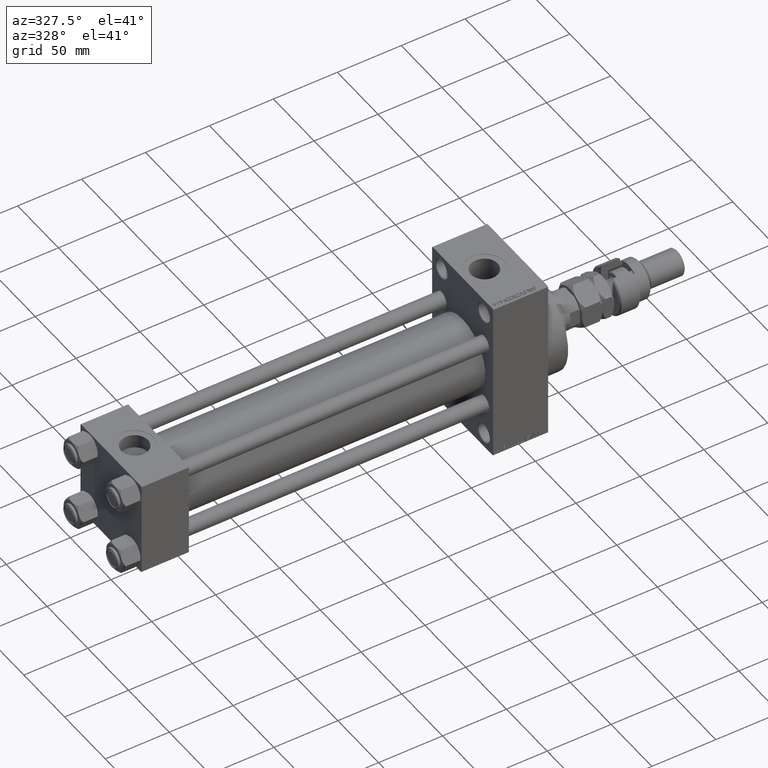
[diagram: clean part render]
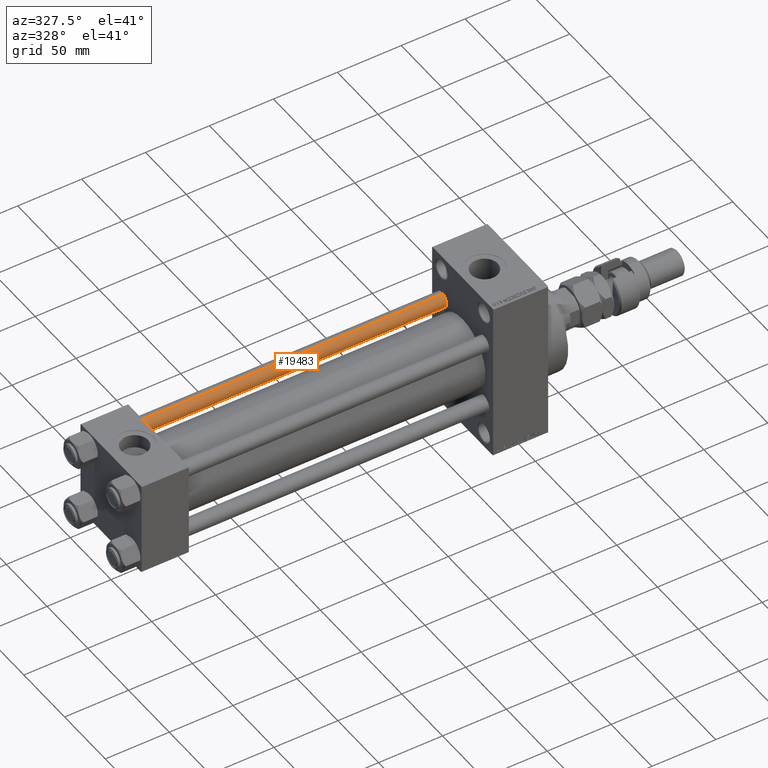
[diagram: same view with one face highlighted and labeled with its STEP entity id]
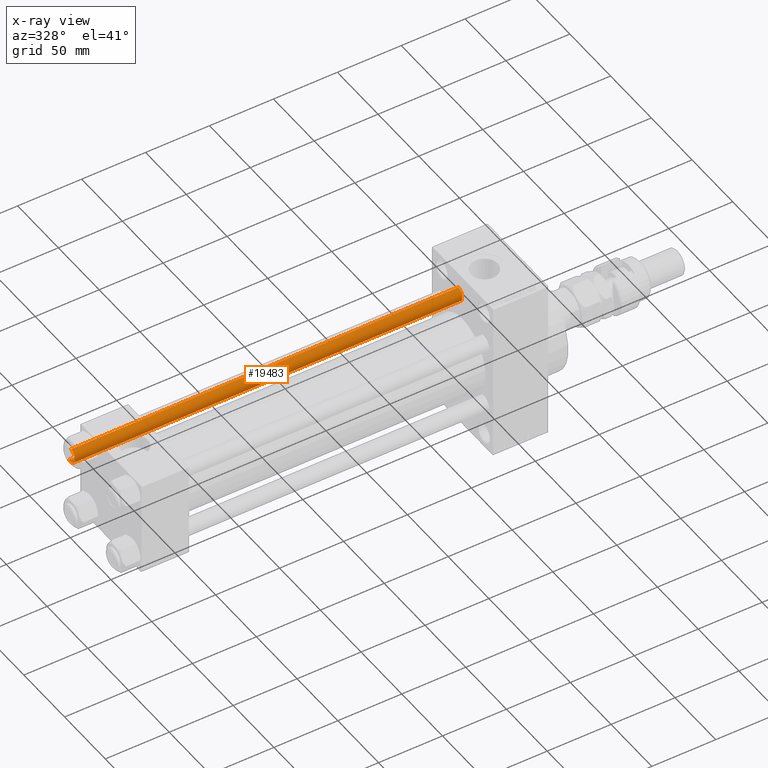
[diagram: x-ray of the same camera — body ghosted, the highlighted face saturated]
A machine part, auxiliary view. The second image highlights one B-rep face of the part: STEP entity #19483.
The next image is the same camera in x-ray: the body ghosted, the highlighted face saturated — about 0% of this face is hidden behind the body in this view.
In plain terms, the highlighted cylindrical surface (edge-blend (fillet) strip) has radius 6 mm, axis along (-1, -0, 0).
Its self-contained STEP definition (entity closure, byte-faithful):
#1121 = AXIS2_PLACEMENT_3D ( 'NONE', #28550, #9257, #36688 ) ;
#3309 = EDGE_CURVE ( 'NONE', #30546, #28479, #13300, .T. ) ;
#4923 = CYLINDRICAL_SURFACE ( 'NONE', #47720, 6.000000000000000888 ) ;
#5995 = ORIENTED_EDGE ( 'NONE', *, *, #3309, .T. ) ;
#6814 = CARTESIAN_POINT ( 'NONE',  ( -6.000000000000000888, 0.000000000000000000, 0.4999999999999449329 ) ) ;
#7578 = LINE ( 'NONE', #27371, #28662 ) ;
#7581 = EDGE_CURVE ( 'NONE', #28479, #41779, #32810, .T. ) ;
#9257 = DIRECTION ( 'NONE',  ( 0.000000000000000000, 0.000000000000000000, -1.000000000000000000 ) ) ;
#12069 = DIRECTION ( 'NONE',  ( -1.000000000000000000, 0.000000000000000000, 0.000000000000000000 ) ) ;
#12560 = FACE_OUTER_BOUND ( 'NONE', #13890, .T. ) ;
#12935 = CARTESIAN_POINT ( 'NONE',  ( 0.000000000000000000, 0.000000000000000000, 0.4999999999999449329 ) ) ;
#13300 = CIRCLE ( 'NONE', #1121, 6.000000000000000888 ) ;
#13633 = CIRCLE ( 'NONE', #30654, 6.000000000000000888 ) ;
#13890 = EDGE_LOOP ( 'NONE', ( #38842, #5995, #14931, #38941 ) ) ;
#14931 = ORIENTED_EDGE ( 'NONE', *, *, #7581, .T. ) ;
#17577 = DIRECTION ( 'NONE',  ( -0.000000000000000000, -0.000000000000000000, -1.000000000000000000 ) ) ;
#19483 = ADVANCED_FACE ( 'NONE', ( #12560 ), #4923, .T. ) ;
#20174 = DIRECTION ( 'NONE',  ( -0.000000000000000000, -0.000000000000000000, -1.000000000000000000 ) ) ;
#20422 = CARTESIAN_POINT ( 'NONE',  ( 0.000000000000000000, 0.000000000000000000, 304.0000000000000000 ) ) ;
#23835 = CARTESIAN_POINT ( 'NONE',  ( 6.000000000000000888, 7.347880794884120722E-16, 0.4999999999999449329 ) ) ;
#24638 = VERTEX_POINT ( 'NONE', #23835 ) ;
#27371 = CARTESIAN_POINT ( 'NONE',  ( 6.000000000000000888, 7.347880794884120722E-16, 304.0000000000000000 ) ) ;
#28403 = DIRECTION ( 'NONE',  ( -0.000000000000000000, -0.000000000000000000, 1.000000000000000000 ) ) ;
#28479 = VERTEX_POINT ( 'NONE', #50283 ) ;
#28550 = CARTESIAN_POINT ( 'NONE',  ( 0.000000000000000000, 0.000000000000000000, 303.5000000000000000 ) ) ;
#28662 = VECTOR ( 'NONE', #43130, 1000.000000000000000 ) ;
#28720 = VECTOR ( 'NONE', #17577, 1000.000000000000000 ) ;
#30546 = VERTEX_POINT ( 'NONE', #35264 ) ;
#30654 = AXIS2_PLACEMENT_3D ( 'NONE', #12935, #28403, #43922 ) ;
#32810 = LINE ( 'NONE', #44259, #28720 ) ;
#35264 = CARTESIAN_POINT ( 'NONE',  ( 6.000000000000000888, 7.347880794884120722E-16, 303.5000000000000000 ) ) ;
#36688 = DIRECTION ( 'NONE',  ( 1.000000000000000000, 0.000000000000000000, 0.000000000000000000 ) ) ;
#36995 = EDGE_CURVE ( 'NONE', #30546, #24638, #7578, .T. ) ;
#38842 = ORIENTED_EDGE ( 'NONE', *, *, #36995, .F. ) ;
#38941 = ORIENTED_EDGE ( 'NONE', *, *, #49833, .T. ) ;
#41779 = VERTEX_POINT ( 'NONE', #6814 ) ;
#43130 = DIRECTION ( 'NONE',  ( -0.000000000000000000, -0.000000000000000000, -1.000000000000000000 ) ) ;
#43922 = DIRECTION ( 'NONE',  ( 1.000000000000000000, 0.000000000000000000, 0.000000000000000000 ) ) ;
#44259 = CARTESIAN_POINT ( 'NONE',  ( -6.000000000000000888, 0.000000000000000000, 304.0000000000000000 ) ) ;
#47720 = AXIS2_PLACEMENT_3D ( 'NONE', #20422, #20174, #12069 ) ;
#49833 = EDGE_CURVE ( 'NONE', #41779, #24638, #13633, .T. ) ;
#50283 = CARTESIAN_POINT ( 'NONE',  ( -6.000000000000000888, 0.000000000000000000, 303.5000000000000000 ) ) ;